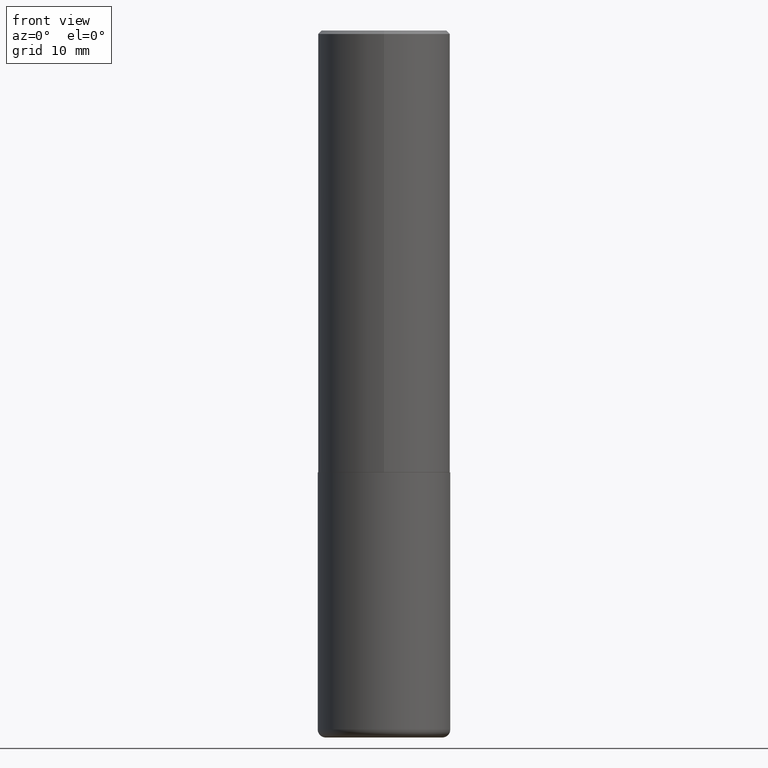
[diagram: clean part render]
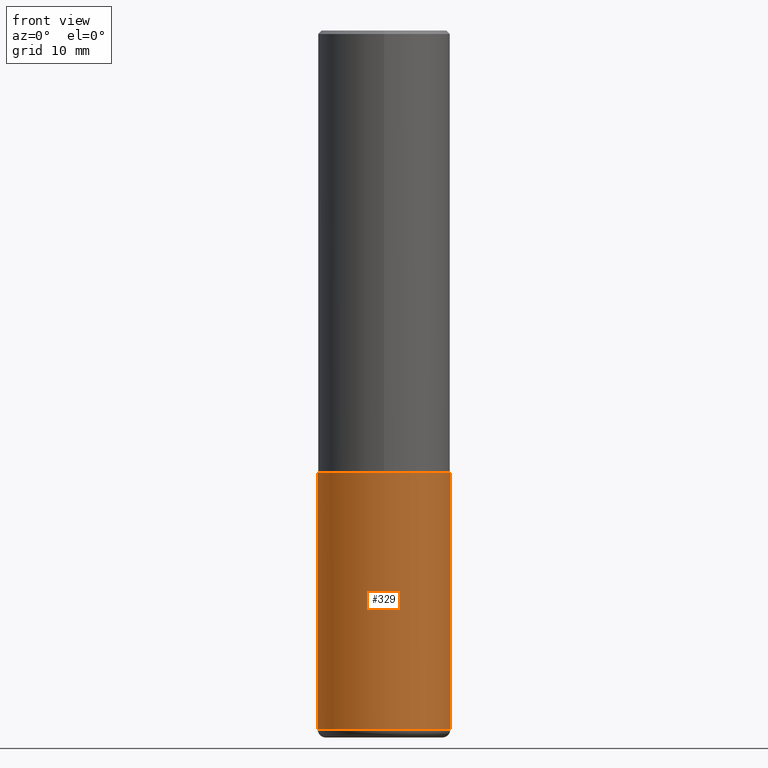
[diagram: same view with one face highlighted and labeled with its STEP entity id]
A machine part, front view. The second image highlights one B-rep face of the part: STEP entity #329.
In plain terms, the highlighted cylindrical surface (partial cylindrical patch) has radius 9.525 mm, axis along (-0, 0, 1).
Its self-contained STEP definition (entity closure, byte-faithful):
#2 = VERTEX_POINT ( 'NONE', #404 ) ;
#6 = EDGE_CURVE ( 'NONE', #2, #358, #401, .T. ) ;
#21 = DIRECTION ( 'NONE',  ( -2.445468806185136597E-29, 3.491481338843145583E-15, 1.000000000000000000 ) ) ;
#49 = CARTESIAN_POINT ( 'NONE',  ( -0.3749999999999999445, -1.114427343602426500E-14, -3.954999999999999627 ) ) ;
#51 = LINE ( 'NONE', #170, #223 ) ;
#71 = ORIENTED_EDGE ( 'NONE', *, *, #403, .T. ) ;
#72 = FACE_OUTER_BOUND ( 'NONE', #238, .T. ) ;
#109 = CARTESIAN_POINT ( 'NONE',  ( -0.3750000000000000555, -8.604220762015875546E-15, -2.499999999999999556 ) ) ;
#127 = CIRCLE ( 'NONE', #335, 0.3750000000000000555 ) ;
#141 = DIRECTION ( 'NONE',  ( 1.000000000000000000, -6.982962677686265922E-15, 4.876176775795935793E-29 ) ) ;
#147 = DIRECTION ( 'NONE',  ( 1.000000000000000000, -6.982962677686266711E-15, 0.000000000000000000 ) ) ;
#149 = CARTESIAN_POINT ( 'NONE',  ( 6.113672015462840371E-29, -8.728703347107863365E-15, -2.499999999999999556 ) ) ;
#168 = DIRECTION ( 'NONE',  ( -2.445468806185136597E-29, 3.491481338843145583E-15, 1.000000000000000000 ) ) ;
#170 = CARTESIAN_POINT ( 'NONE',  ( -0.3750000000000000555, 2.664535259100376091E-15, -1.844600658845589598E-29 ) ) ;
#176 = AXIS2_PLACEMENT_3D ( 'NONE', #331, #168, #141 ) ;
#200 = CYLINDRICAL_SURFACE ( 'NONE', #176, 0.3750000000000000555 ) ;
#223 = VECTOR ( 'NONE', #298, 39.37007874015748143 ) ;
#225 = CARTESIAN_POINT ( 'NONE',  ( 9.671829128462214433E-29, -1.380880869512464070E-14, -3.954999999999999627 ) ) ;
#228 = VERTEX_POINT ( 'NONE', #49 ) ;
#230 = EDGE_CURVE ( 'NONE', #228, #234, #51, .T. ) ;
#232 = VECTOR ( 'NONE', #249, 39.37007874015748143 ) ;
#234 = VERTEX_POINT ( 'NONE', #109 ) ;
#238 = EDGE_LOOP ( 'NONE', ( #354, #71, #360, #380 ) ) ;
#249 = DIRECTION ( 'NONE',  ( -2.445468806185136877E-29, 3.491481338843145188E-15, 1.000000000000000000 ) ) ;
#250 = DIRECTION ( 'NONE',  ( 1.000000000000000000, -6.982962677686264344E-15, 0.000000000000000000 ) ) ;
#295 = CIRCLE ( 'NONE', #351, 0.3750000000000000555 ) ;
#298 = DIRECTION ( 'NONE',  ( -2.445468806185136877E-29, 3.491481338843145188E-15, 1.000000000000000000 ) ) ;
#329 = ADVANCED_FACE ( 'NONE', ( #72 ), #200, .T. ) ;
#331 = CARTESIAN_POINT ( 'NONE',  ( 0.000000000000000000, 0.000000000000000000, 0.000000000000000000 ) ) ;
#332 = CARTESIAN_POINT ( 'NONE',  ( 0.3750000000000000555, -2.618611004132350016E-15, 1.828566290923476203E-29 ) ) ;
#335 = AXIS2_PLACEMENT_3D ( 'NONE', #225, #21, #147 ) ;
#351 = AXIS2_PLACEMENT_3D ( 'NONE', #149, #411, #250 ) ;
#354 = ORIENTED_EDGE ( 'NONE', *, *, #230, .F. ) ;
#358 = VERTEX_POINT ( 'NONE', #387 ) ;
#360 = ORIENTED_EDGE ( 'NONE', *, *, #6, .T. ) ;
#380 = ORIENTED_EDGE ( 'NONE', *, *, #415, .F. ) ;
#387 = CARTESIAN_POINT ( 'NONE',  ( 0.3750000000000000555, -1.134731435124021180E-14, -2.499999999999999556 ) ) ;
#401 = LINE ( 'NONE', #332, #232 ) ;
#403 = EDGE_CURVE ( 'NONE', #228, #2, #127, .T. ) ;
#404 = CARTESIAN_POINT ( 'NONE',  ( 0.3749999999999999445, -1.642741969925699071E-14, -3.954999999999999627 ) ) ;
#411 = DIRECTION ( 'NONE',  ( -2.445468806185136597E-29, 3.491481338843145583E-15, 1.000000000000000000 ) ) ;
#415 = EDGE_CURVE ( 'NONE', #234, #358, #295, .T. ) ;